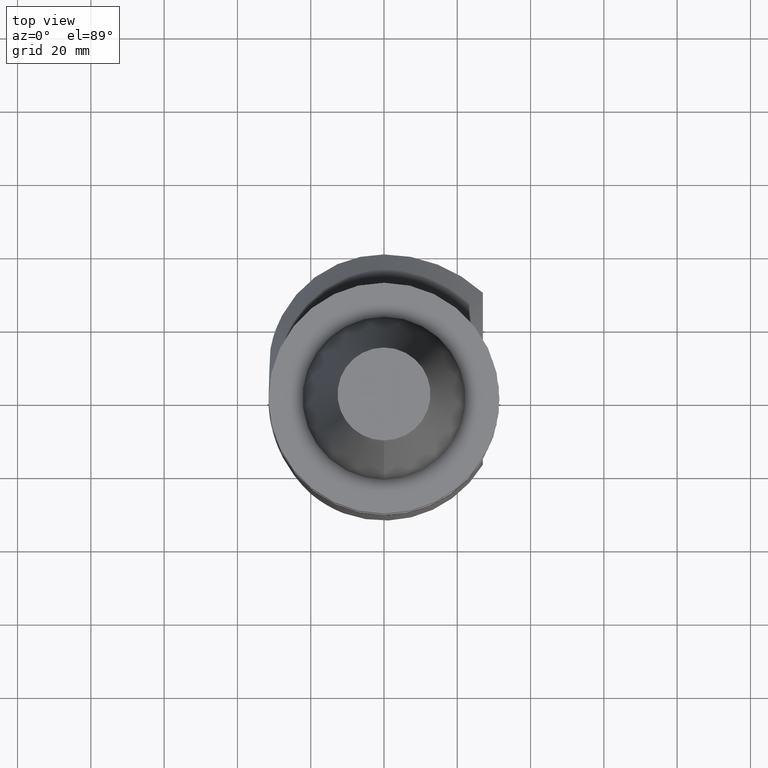
[diagram: clean part render]
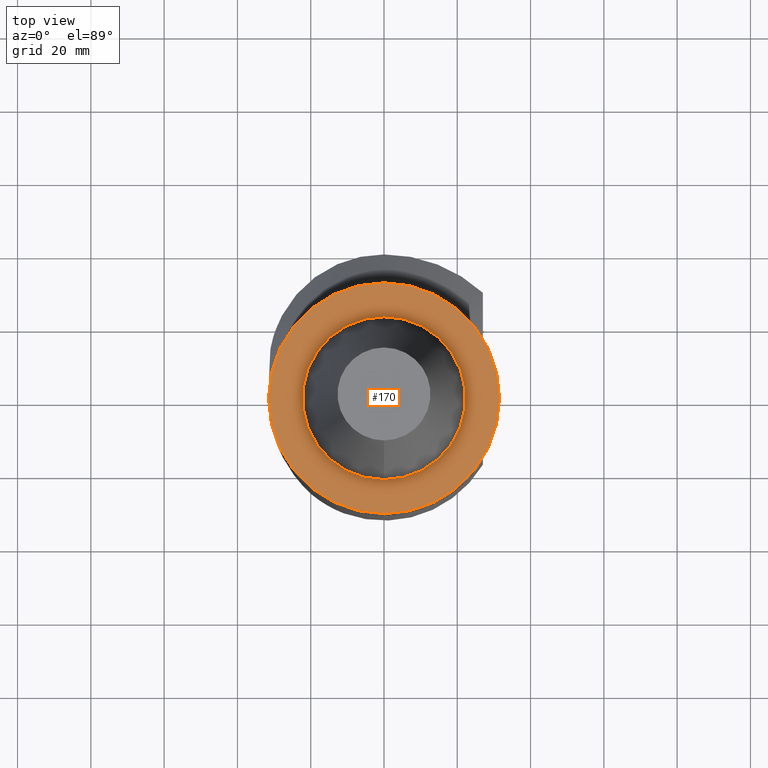
[diagram: same view with one face highlighted and labeled with its STEP entity id]
A machine part, top view. The second image highlights one B-rep face of the part: STEP entity #170.
In plain terms, the highlighted planar face has unit normal (-0, 0, 1).
Its self-contained STEP definition (entity closure, byte-faithful):
#115=EDGE_CURVE('Unnamed[1]',#316,#316,#317,.T.);
#154=EDGE_CURVE('Unnamed[1]',#370,#370,#371,.T.);
#170=ADVANCED_FACE('Unnamed[1]',(#392,#393),#394,.T.);
#316=VERTEX_POINT('',#575);
#317=CIRCLE('',#576,22.2250000000001);
#370=VERTEX_POINT('',#664);
#371=CIRCLE('',#665,31.5000000000001);
#392=FACE_BOUND('',#719,.T.);
#393=FACE_OUTER_BOUND('',#720,.T.);
#394=PLANE('',#721);
#575=CARTESIAN_POINT('',(6.12323399573601E-017,-22.2250000000001,-0.999999999999875));
#576=AXIS2_PLACEMENT_3D('',#1031,#1032,#1033);
#664=CARTESIAN_POINT('',(6.12323399573598E-017,-31.5000000000001,-0.99999999999987));
#665=AXIS2_PLACEMENT_3D('',#1091,#1092,#1093);
#719=EDGE_LOOP('',(#1122));
#720=EDGE_LOOP('',(#1123));
#721=AXIS2_PLACEMENT_3D('',#1124,#1125,#1126);
#1031=CARTESIAN_POINT('',(6.12323399573607E-017,6.70266002140745E-015,-0.999999999999886));
#1032=DIRECTION('',(6.12323399573676E-017,-2.0159339262104E-016,-1.0));
#1033=DIRECTION('',(-7.51688241936162E-033,-1.0,2.0159339262104E-016));
#1091=CARTESIAN_POINT('',(6.12323399573607E-017,6.70266002140745E-015,-0.999999999999886));
#1092=DIRECTION('',(6.12323399573677E-017,-2.0159339262104E-016,-1.0));
#1093=DIRECTION('',(-7.51688241936162E-033,-1.0,2.0159339262104E-016));
#1122=ORIENTED_EDGE('',*,*,#115,.T.);
#1123=ORIENTED_EDGE('',*,*,#154,.F.);
#1124=CARTESIAN_POINT('',(6.123233995736E-017,-26.8625000000001,-0.999999999999872));
#1125=DIRECTION('',(-3.20807579417483E-032,5.23918536578615E-016,1.0));
#1126=DIRECTION('',(1.0,6.12323399573677E-017,0.0));